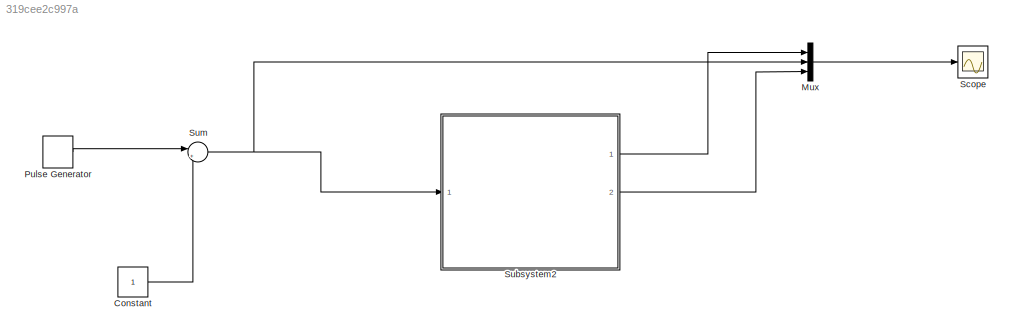
MODEL slx_319cee2c997a
KIND model
CONFIG AbsTol = auto
CONFIG EnableMultiTasking = off
CONFIG FixedStep = auto
CONFIG MaxStep = auto
CONFIG MinStep = auto
CONFIG RelTol = 1e-3
CONFIG SampleTimeConstraint = Unconstrained
CONFIG Solver = VariableStepAuto
CONFIG SolverName = VariableStepAuto
CONFIG StartTime = 0.0
CONFIG StopTime = 10.0
BLOCK [Constant] Constant
BLOCK [Mux] Mux
  DisplayOption = bar
  Inputs = 3
  Ports = [3, 1]
BLOCK [DiscretePulseGenerator] Pulse Generator
  Amplitude = 2
  Period = 5
  Ports = [0, 1]
  PulseType = Time based
  PulseWidth = 50
BLOCK [Scope] Scope
  NumInputPorts = 1
  Ports = [1]
  ScopeSpecificationString = Simulink.scopes.TimeScopeBlockCfg('CurrentConfiguration', extmgr.ConfigurationSet(extmgr.Configuration('Core','General UI',true),extmgr.Configuration('Core','Source UI',true),extmgr.Configuration('Sources','WiredSimulink',true,'DataLoggingVariableName','ou1','DataLogging',true,'DataLoggingSaveFormat','Array'),extmgr.Configuration('Visuals','Time Domain',true,'SerializedDisplays',{struct('MinYLimRe...<+1780ch>
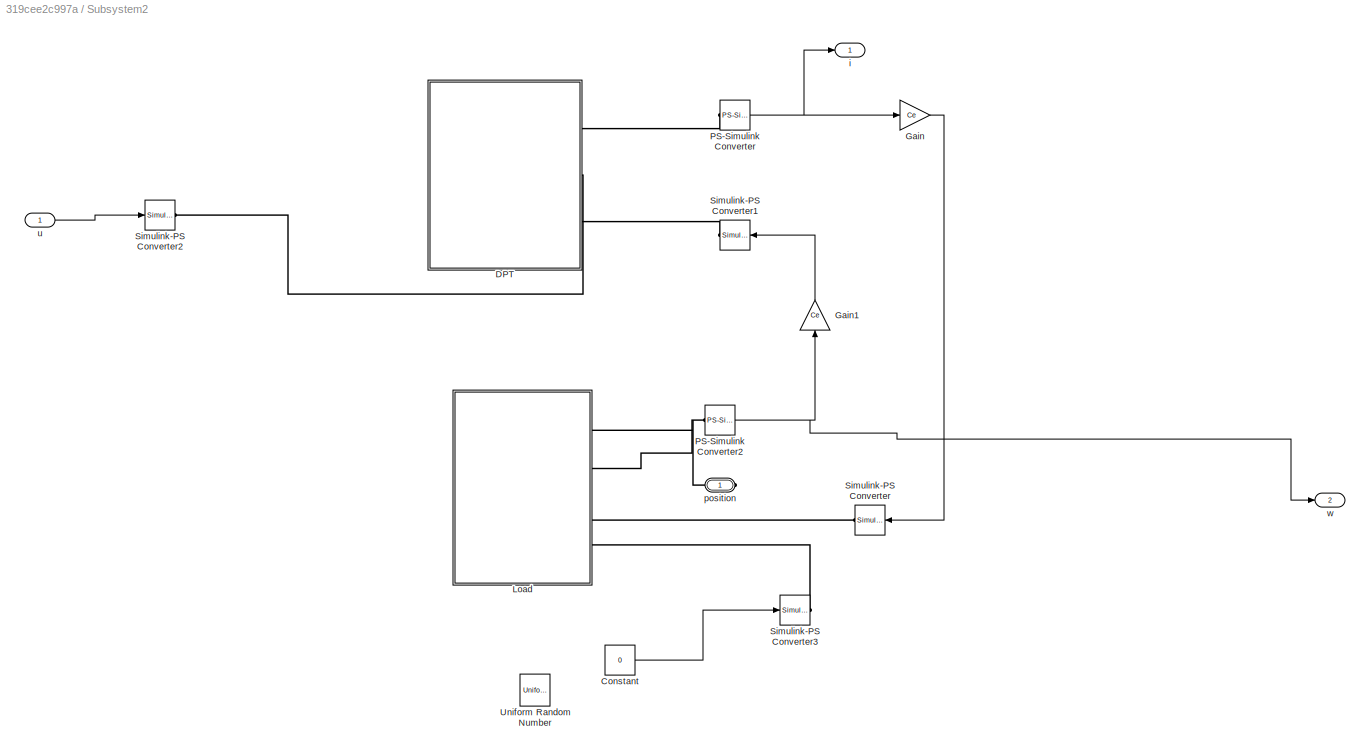
BLOCK [SubSystem] Subsystem2
  Ports = [1, 2, 0, 0, 0, 0, 1]
  RequestExecContextInheritance = off
  Variant = off
BLOCK [Constant] Subsystem2/Constant
  Value = 0
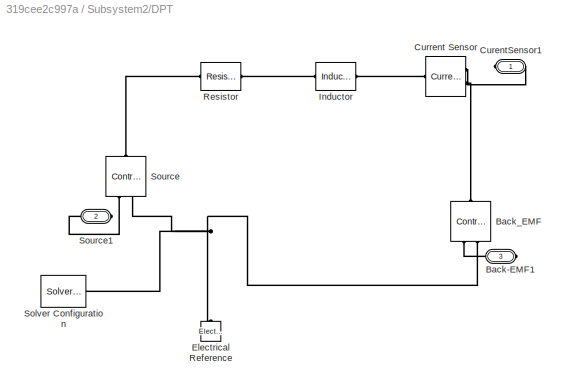
BLOCK [SubSystem] Subsystem2/DPT
  Ports = [0, 0, 0, 0, 0, 0, 3]
  RequestExecContextInheritance = off
  Variant = off
BLOCK [PMIOPort] Subsystem2/DPT/Back-EMF1
  Port = 3
  Side = Right
BLOCK [Reference] Subsystem2/DPT/Back_EMF  REF=fl_lib/Electrical/Electrical Sources/Controlled Voltage
Source
  Ports = [0, 0, 0, 0, 0, 1, 2]
  SourceBlock = fl_lib/Electrical/Electrical Sources/Controlled Voltage\nSource
  SourceProductBaseCode = SS
  SourceProductName = Simscape
  SourceType = Controlled Voltage\nSource
BLOCK [PMIOPort] Subsystem2/DPT/CurentSensor1
  Port = 1
  Side = Right
BLOCK [Reference] Subsystem2/DPT/Current Sensor  REF=fl_lib/Electrical/Electrical Sensors/Current Sensor
  Ports = [0, 0, 0, 0, 0, 1, 2]
  SourceBlock = fl_lib/Electrical/Electrical Sensors/Current Sensor
  SourceProductBaseCode = SS
  SourceProductName = Simscape
  SourceType = Current Sensor
BLOCK [Reference] Subsystem2/DPT/Electrical Reference  REF=fl_lib/Electrical/Electrical Elements/Electrical Reference
  Ports = [0, 0, 0, 0, 0, 1]
  SourceBlock = fl_lib/Electrical/Electrical Elements/Electrical Reference
  SourceProductBaseCode = SS
  SourceProductName = Simscape
  SourceType = Electrical Reference
BLOCK [Reference] Subsystem2/DPT/Inductor  REF=fl_lib/Electrical/Electrical Elements/Inductor
  Ports = [0, 0, 0, 0, 0, 1, 1]
  SourceBlock = fl_lib/Electrical/Electrical Elements/Inductor
  SourceProductBaseCode = SS
  SourceProductName = Simscape
  SourceType = Inductor
BLOCK [Reference] Subsystem2/DPT/Resistor  REF=fl_lib/Electrical/Electrical Elements/Resistor
  Ports = [0, 0, 0, 0, 0, 1, 1]
  SourceBlock = fl_lib/Electrical/Electrical Elements/Resistor
  SourceProductBaseCode = SS
  SourceProductName = Simscape
  SourceType = Resistor
BLOCK [Reference] Subsystem2/DPT/Solver Configuration  REF=nesl_utility/Solver
Configuration
  Ports = [0, 0, 0, 0, 0, 0, 1]
  SourceBlock = nesl_utility/Solver\nConfiguration
  SourceProductBaseCode = SS
  SourceProductName = Simscape
  SourceType = Solver\nConfiguration
BLOCK [Reference] Subsystem2/DPT/Source  REF=fl_lib/Electrical/Electrical Sources/Controlled Voltage
Source
  Ports = [0, 0, 0, 0, 0, 1, 2]
  SourceBlock = fl_lib/Electrical/Electrical Sources/Controlled Voltage\nSource
  SourceProductBaseCode = SS
  SourceProductName = Simscape
  SourceType = Controlled Voltage\nSource
BLOCK [PMIOPort] Subsystem2/DPT/Source1
  Port = 2
  Side = Right
BLOCK [Gain] Subsystem2/Gain
  Gain = Ce
  OutDataTypeStr = Inherit: Inherit via internal rule
  ParamDataTypeStr = Inherit: Inherit via internal rule
  SaturateOnIntegerOverflow = off
BLOCK [Gain] Subsystem2/Gain1
  Gain = Ce
  OutDataTypeStr = Inherit: Inherit via internal rule
  ParamDataTypeStr = Inherit: Inherit via internal rule
  SaturateOnIntegerOverflow = off
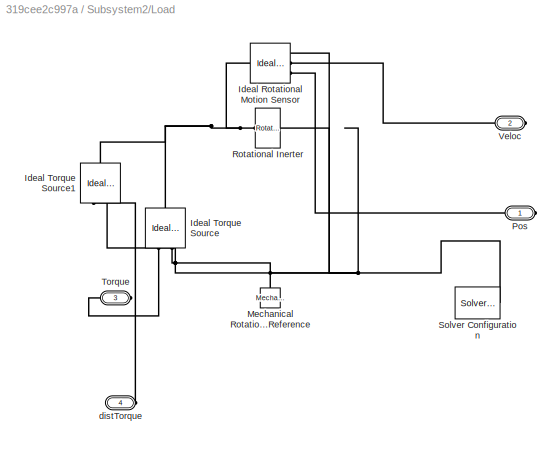
BLOCK [SubSystem] Subsystem2/Load
  Ports = [0, 0, 0, 0, 0, 0, 4]
  RequestExecContextInheritance = off
  Variant = off
BLOCK [Reference] Subsystem2/Load/Ideal Rotational Motion Sensor  REF=fl_lib/Mechanical/Mechanical Sensors/Ideal Rotational
Motion Sensor
  Ports = [0, 0, 0, 0, 0, 1, 3]
  SourceBlock = fl_lib/Mechanical/Mechanical Sensors/Ideal Rotational\nMotion Sensor
  SourceProductBaseCode = SS
  SourceProductName = Simscape
  SourceType = Ideal Rotational\nMotion Sensor
BLOCK [Reference] Subsystem2/Load/Ideal Torque Source  REF=fl_lib/Mechanical/Mechanical Sources/Ideal Torque Source
  Ports = [0, 0, 0, 0, 0, 1, 2]
  SourceBlock = fl_lib/Mechanical/Mechanical Sources/Ideal Torque Source
  SourceProductBaseCode = SS
  SourceProductName = Simscape
  SourceType = Ideal Torque Source
BLOCK [Reference] Subsystem2/Load/Ideal Torque Source1  REF=fl_lib/Mechanical/Mechanical Sources/Ideal Torque Source
  Ports = [0, 0, 0, 0, 0, 1, 2]
  SourceBlock = fl_lib/Mechanical/Mechanical Sources/Ideal Torque Source
  SourceProductBaseCode = SS
  SourceProductName = Simscape
  SourceType = Ideal Torque Source
BLOCK [Reference] Subsystem2/Load/Mechanical Rotational Reference  REF=fl_lib/Mechanical/Rotational Elements/Mechanical
Rotational Reference
  Ports = [0, 0, 0, 0, 0, 1]
  SourceBlock = fl_lib/Mechanical/Rotational Elements/Mechanical\nRotational Reference
  SourceProductBaseCode = SS
  SourceProductName = Simscape
  SourceType = Mechanical\nRotational Reference
BLOCK [PMIOPort] Subsystem2/Load/Pos
  Port = 1
  Side = Right
BLOCK [Reference] Subsystem2/Load/Rotational Inerter  REF=fl_lib/Mechanical/Rotational Elements/Rotational Inerter
  Ports = [0, 0, 0, 0, 0, 1, 1]
  SourceBlock = fl_lib/Mechanical/Rotational Elements/Rotational Inerter
  SourceProductBaseCode = SS
  SourceProductName = Simscape
  SourceType = Rotational Inerter
BLOCK [Reference] Subsystem2/Load/Solver Configuration  REF=nesl_utility/Solver
Configuration
  Ports = [0, 0, 0, 0, 0, 0, 1]
  SourceBlock = nesl_utility/Solver\nConfiguration
  SourceProductBaseCode = SS
  SourceProductName = Simscape
  SourceType = Solver\nConfiguration
BLOCK [PMIOPort] Subsystem2/Load/Torque
  Port = 3
  Side = Right
BLOCK [PMIOPort] Subsystem2/Load/Veloc
  Port = 2
  Side = Right
BLOCK [PMIOPort] Subsystem2/Load/distTorque
  Port = 4
  Side = Right
BLOCK [Reference] Subsystem2/PS-Simulink Converter  REF=nesl_utility/PS-Simulink
Converter
  Ports = [0, 1, 0, 0, 0, 1]
  SourceBlock = nesl_utility/PS-Simulink\nConverter
  SourceProductBaseCode = SS
  SourceProductName = Simscape
  SourceType = PS-Simulink\nConverter
BLOCK [Reference] Subsystem2/PS-Simulink Converter2  REF=nesl_utility/PS-Simulink
Converter
  Ports = [0, 1, 0, 0, 0, 1]
  SourceBlock = nesl_utility/PS-Simulink\nConverter
  SourceProductBaseCode = SS
  SourceProductName = Simscape
  SourceType = PS-Simulink\nConverter
BLOCK [Reference] Subsystem2/Simulink-PS Converter  REF=nesl_utility/Simulink-PS
Converter
  Ports = [1, 0, 0, 0, 0, 0, 1]
  SourceBlock = nesl_utility/Simulink-PS\nConverter
  SourceProductBaseCode = SS
  SourceProductName = Simscape
  SourceType = Simulink-PS\nConverter
BLOCK [Reference] Subsystem2/Simulink-PS Converter1  REF=nesl_utility/Simulink-PS
Converter
  Ports = [1, 0, 0, 0, 0, 0, 1]
  SourceBlock = nesl_utility/Simulink-PS\nConverter
  SourceProductBaseCode = SS
  SourceProductName = Simscape
  SourceType = Simulink-PS\nConverter
BLOCK [Reference] Subsystem2/Simulink-PS Converter2  REF=nesl_utility/Simulink-PS
Converter
  Ports = [1, 0, 0, 0, 0, 0, 1]
  SourceBlock = nesl_utility/Simulink-PS\nConverter
  SourceProductBaseCode = SS
  SourceProductName = Simscape
  SourceType = Simulink-PS\nConverter
BLOCK [Reference] Subsystem2/Simulink-PS Converter3  REF=nesl_utility/Simulink-PS
Converter
  Ports = [1, 0, 0, 0, 0, 0, 1]
  SourceBlock = nesl_utility/Simulink-PS\nConverter
  SourceProductBaseCode = SS
  SourceProductName = Simscape
  SourceType = Simulink-PS\nConverter
BLOCK [UniformRandomNumber] Subsystem2/Uniform Random Number
  Maximum = 0.1
  Minimum = -0.1
  SampleTime = 0.1
BLOCK [Outport] Subsystem2/i
  IconDisplay = Port number
BLOCK [PMIOPort] Subsystem2/position
  Port = 1
  Side = Right
BLOCK [Inport] Subsystem2/u
  IconDisplay = Port number
BLOCK [Outport] Subsystem2/w
  IconDisplay = Port number
  Port = 2
BLOCK [Sum] Sum
  IconShape = round
  InputSameDT = off
  Inputs = |+-
  OutDataTypeStr = Inherit: Inherit via internal rule
  Ports = [2, 1]
  SaturateOnIntegerOverflow = off
LINE Constant:1 -> Sum:2
LINE Mux:1 -> Scope:1
LINE Pulse Generator:1 -> Sum:1
LINE Subsystem2/Constant:1 -> Subsystem2/Simulink-PS Converter3:1
LINE Subsystem2/Gain1:1 -> Subsystem2/Simulink-PS Converter1:1
LINE Subsystem2/Gain:1 -> Subsystem2/Simulink-PS Converter:1
NET Subsystem2/PS-Simulink Converter2:1 -> Subsystem2/Gain1:1, Subsystem2/w:1
NET Subsystem2/PS-Simulink Converter:1 -> Subsystem2/Gain:1, Subsystem2/i:1
LINE Subsystem2/u:1 -> Subsystem2/Simulink-PS Converter2:1
LINE Subsystem2:1 -> Mux:1
LINE Subsystem2:2 -> Mux:3
NET Sum:1 -> Mux:2, Subsystem2:1
PLINE Subsystem2/DPT/Back-EMF1:RConn1 -- Subsystem2/DPT/Back_EMF:RConn1
PLINE Subsystem2/DPT/Back_EMF:LConn1 -- Subsystem2/DPT/Current Sensor:RConn2
PNET net1: Subsystem2/DPT/Back_EMF:RConn2 -- Subsystem2/DPT/Electrical Reference:LConn1 -- Subsystem2/DPT/Solver Configuration:RConn1 -- Subsystem2/DPT/Source:RConn2
PLINE Subsystem2/DPT/CurentSensor1:RConn1 -- Subsystem2/DPT/Current Sensor:RConn1
PLINE Subsystem2/DPT/Current Sensor:LConn1 -- Subsystem2/DPT/Inductor:RConn1
PLINE Subsystem2/DPT/Inductor:LConn1 -- Subsystem2/DPT/Resistor:RConn1
PLINE Subsystem2/DPT/Resistor:LConn1 -- Subsystem2/DPT/Source:LConn1
PLINE Subsystem2/DPT/Source1:RConn1 -- Subsystem2/DPT/Source:RConn1
PLINE Subsystem2/DPT:RConn1 -- Subsystem2/PS-Simulink Converter:LConn1
PLINE Subsystem2/DPT:RConn2 -- Subsystem2/Simulink-PS Converter2:RConn1
PLINE Subsystem2/DPT:RConn3 -- Subsystem2/Simulink-PS Converter1:RConn1
PNET net2: Subsystem2/Load/Ideal Rotational Motion Sensor:LConn1 -- Subsystem2/Load/Ideal Torque Source1:LConn1 -- Subsystem2/Load/Ideal Torque Source:LConn1 -- Subsystem2/Load/Rotational Inerter:LConn1
PNET net3: Subsystem2/Load/Ideal Rotational Motion Sensor:RConn1 -- Subsystem2/Load/Ideal Torque Source1:RConn2 -- Subsystem2/Load/Ideal Torque Source:RConn2 -- Subsystem2/Load/Mechanical Rotational Reference:LConn1 -- Subsystem2/Load/Rotational Inerter:RConn1 -- Subsystem2/Load/Solver Configuration:RConn1
PLINE Subsystem2/Load/Ideal Rotational Motion Sensor:RConn2 -- Subsystem2/Load/Veloc:RConn1
PLINE Subsystem2/Load/Ideal Rotational Motion Sensor:RConn3 -- Subsystem2/Load/Pos:RConn1
PLINE Subsystem2/Load/Ideal Torque Source1:RConn1 -- Subsystem2/Load/distTorque:RConn1
PLINE Subsystem2/Load/Ideal Torque Source:RConn1 -- Subsystem2/Load/Torque:RConn1
PLINE Subsystem2/Load:RConn1 -- Subsystem2/position:RConn1
PLINE Subsystem2/Load:RConn2 -- Subsystem2/PS-Simulink Converter2:LConn1
PLINE Subsystem2/Load:RConn3 -- Subsystem2/Simulink-PS Converter:RConn1
PLINE Subsystem2/Load:RConn4 -- Subsystem2/Simulink-PS Converter3:RConn1
note: NET lines group one-source signal fan-out (src -> all destinations, sorted); 1:1 wires keep LINE; PNET lines group multi-terminal physical nets as a canonical sorted terminal list (undirected conserving connections); 2-terminal nets keep the pairwise PLINE form
